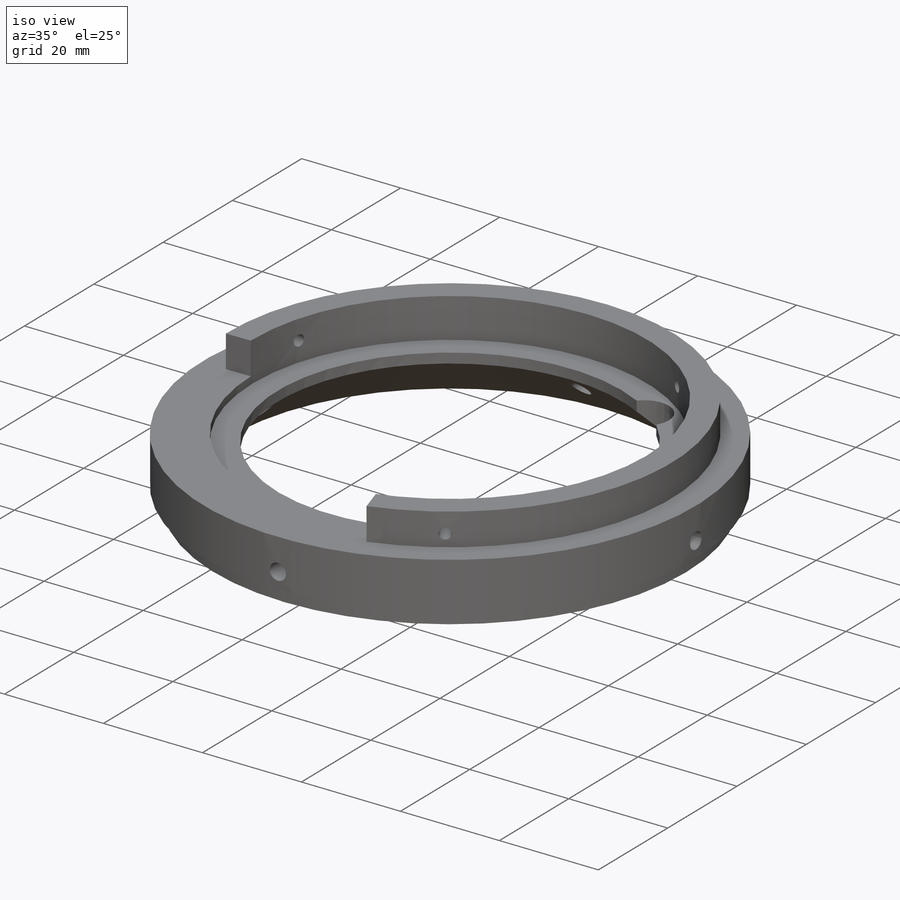
[diagram: iso view]
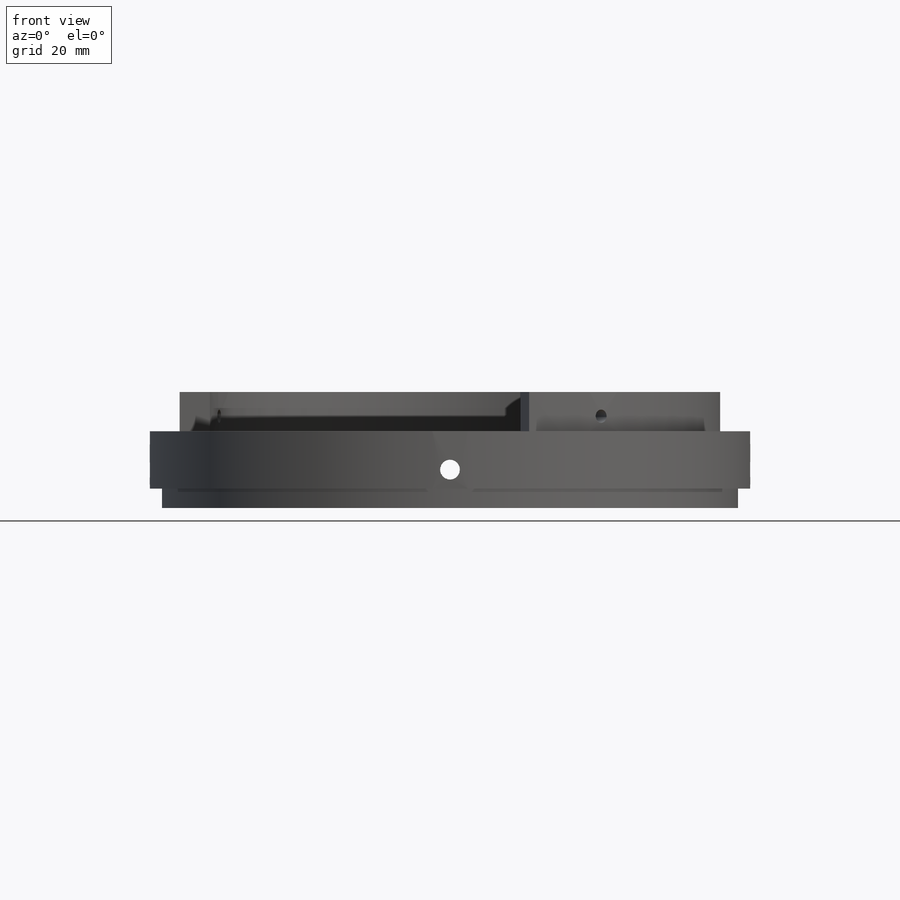
[diagram: front view]
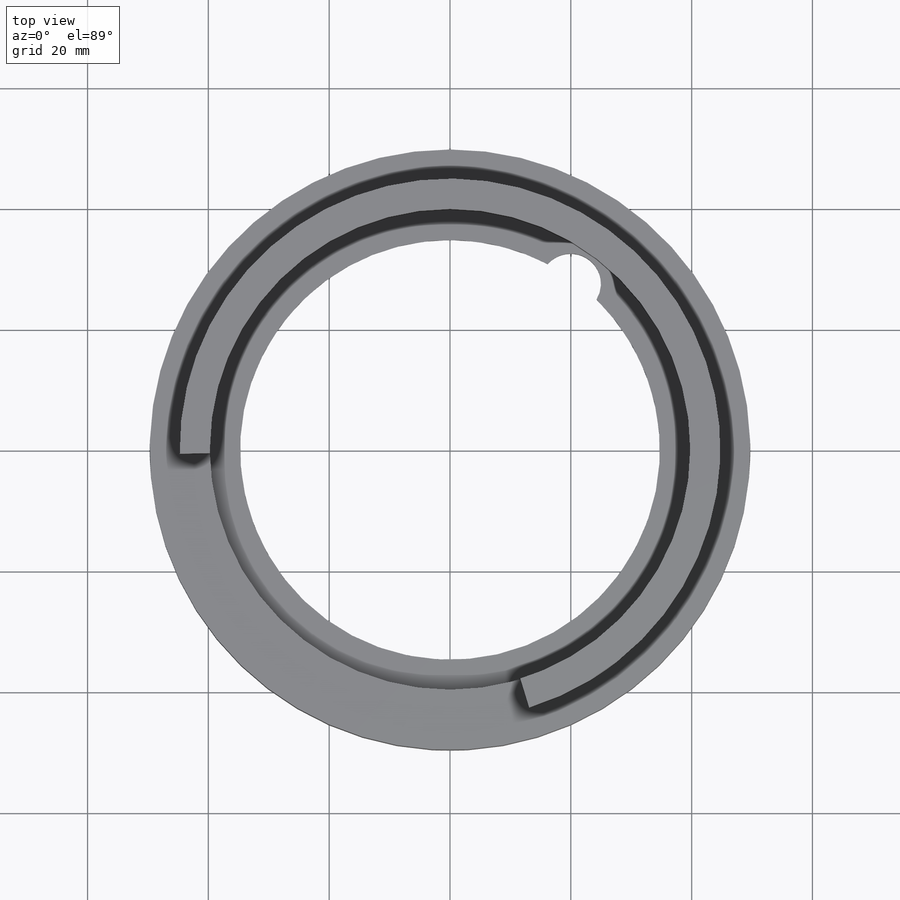
[diagram: top view]
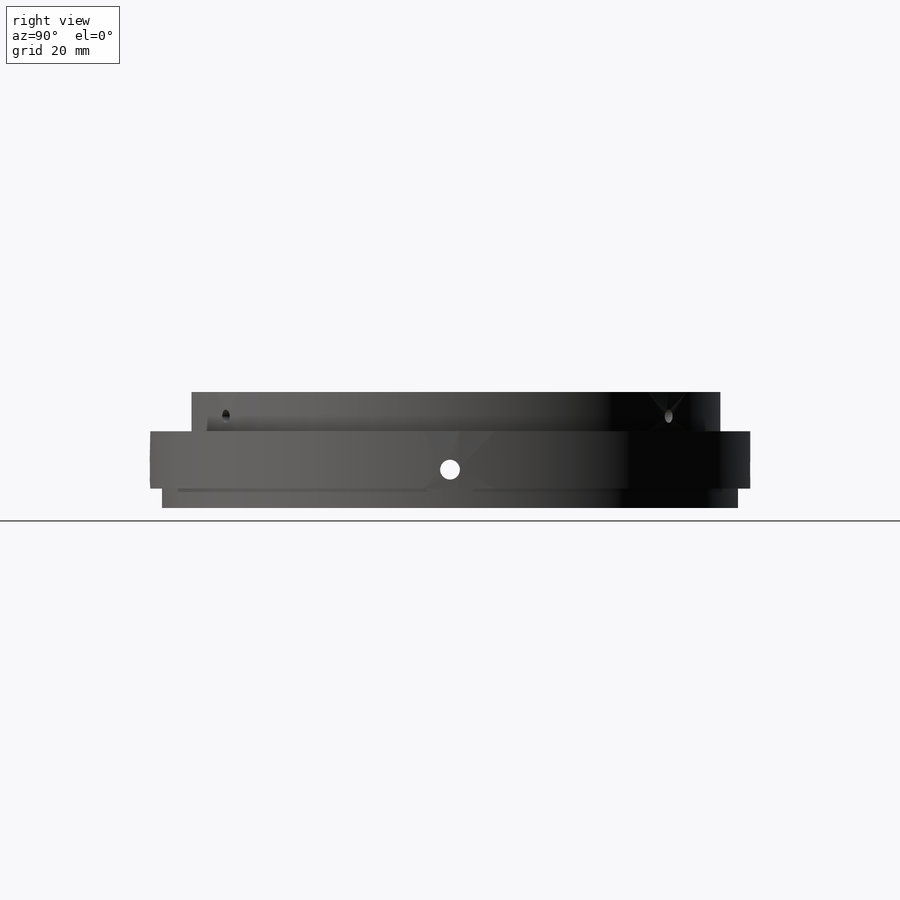
[diagram: right view]
SOLIDWORKS PART (.sldprt)
format: sldprt  version: not decoded by parser v0  size: 295,936 bytes
history: native  units: mm
features: sketch x5, cut_extrude x4, pattern_circular x3, material x1, revolve x1, plane x1 (+16 scaffold rows collapsed)
feature tree (31):
  scaffold x16  (default folders/planes/origin — collapsed)
  material  "Material <not specified>"
  sketch  "Sketch2"  dims[c1.D1=49.7mm c1.D2=2.025mm c1.D3=9.4996mm c1.D4=12.7mm c2.D1=49.7mm c2.D4=12.7mm c2.D5=37.5mm c2.D6=2.0mm c2.D7=9.525mm c3.D5=39.75mm c3.D6=5.0mm c3.D7=5.0mm c3.D8=1.5mm c3.D9=5.0mm c3.D10=8.0mm c3.D11=2.0mm]
  revolve  "Revolve1"  Angle=360deg
  sketch  "Sketch5"  dims[D1=3.285mm]
  cut_extrude  "Cut-Extrude1"  [1 undecoded]
  plane  "Plane1"
  sketch  "Sketch6"  dims[D1=2.19mm D2=2.0mm]
  cut_extrude  "Cut-Extrude2"  [1 undecoded]
  pattern_circular  "CirPattern1"  Count=4 Angle=360deg
  sketch  "Sketch7"  dims[c1.D1=5.0mm c2.D1=120.0deg c3.D1=63.5mm]
  cut_extrude  "Cut-Extrude3"  [1 undecoded]
  pattern_circular  "CirPattern2"  Count=2 Angle=110deg
  pattern_circular  "CirPattern3"  Count=2 Angle=110deg
  sketch  "Sketch8"  dims[D1=~26.633059mm D2=34.0mm]
  cut_extrude  "Cut-Extrude5"  [1 undecoded]
decode coverage: 9 of 13 modeling features carry decoded parameters
note: ~ marks probable driven/reference dimensions
note: 4 parameter values undecoded
summary: no parameter record found for 4 features
note: suppression state not decoded; provenance and decode notes live in map.json
